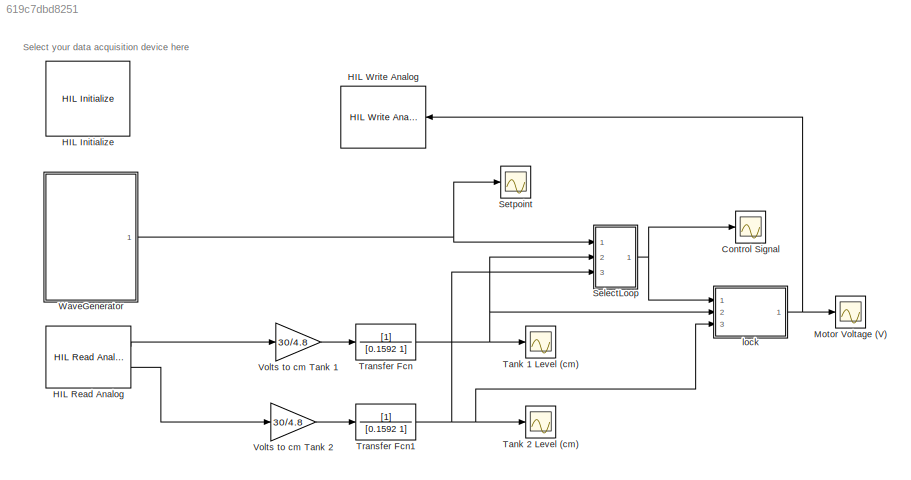
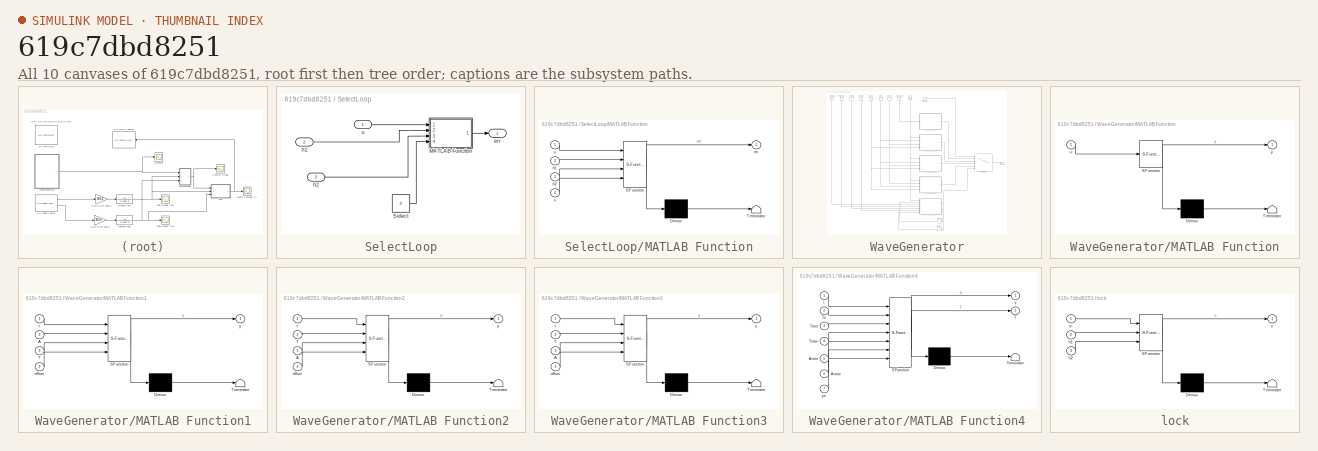
[diagram: thumbnail index - all 10 canvases of the model, root first then tree order]
MODEL slx_619c7dbd8251
KIND model
CONFIG PostLoadFcn = qc_set_target_type(getConfigSet(bdroot, 'QUARC Default Target Configuration'));
BLOCK [Scope] Control Signal
  Floating = off
  LimitDataPoints = off
  NumInputPorts = 1
  Ports = [1]
  SampleTime = 0
  SaveName = control_signal
  SaveToWorkspace = on
  ShowLegends = off
  TimeRange = 30
  YMax = 30
  YMin = -30
BLOCK [Reference] HIL Initialize  REF=quarc_library/Data Acquisition/Generic/Configuration/HIL Initialize
  AttributesFormatString = %<object_name> (%<board_type>-%<board_number>)
  Ports = []
  SourceBlock = quarc_library/Data Acquisition/Generic/Configuration/HIL Initialize
  SourceType = HIL Initialize
  UserDataPersistent = on
  active = off
  analog_input_channels = [0:1]
  analog_input_maximums = 10
  analog_input_minimums = -10
  analog_output_channels = [0:1]
  analog_output_maximums = 10
  analog_output_minimums = -10
  board_number = 0
  board_options = d0=digital;d1=digital;led=auto;update_rate=normal;decimation=1
  board_type = q2_usb
  clock_modes = []
  digital_input_channels = []
  digital_output_channels = []
  digital_output_configuration = []
  encoder_channels = [0:1]
  encoder_filter_frequency = []
  exclusive = off
  final_analog_outputs = [0]
  final_digital_outputs = [1]
  final_other_outputs = []
  final_pwm_outputs = [0]
  hardware_clocks = [0]
  initial_analog_outputs = [0]
  initial_clock_frequencies = []
  initial_digital_outputs = [1]
  initial_encoder_counts = [0]
  initial_other_outputs = []
  initial_pwm_outputs = [0]
  object_name = HIL-1
  other_output_channels = []
  pwm_alignment = []
  pwm_channels = []
  pwm_configuration = []
  pwm_frequency = 1/0.020
  pwm_leading_deadband = []
  pwm_modes = [0]
  pwm_polarity = []
  pwm_trailing_deadband = []
  quadrature = [4]
  set_analog_input_params_at_start = on
  set_analog_input_params_at_switch_in = off
  set_analog_output_params_at_start = on
  set_analog_output_params_at_switch_in = off
  set_analog_outputs_at_start = on
  set_analog_outputs_at_switch_in = off
  set_analog_outputs_at_switch_out = off
  set_analog_outputs_at_terminate = on
  set_analog_outputs_on_watchdog = off
  set_clock_frequencies_at_start = off
  set_clock_frequencies_at_switch_in = off
  set_clock_params_at_start = off
  set_clock_params_at_switch_in = off
  set_digital_output_params_at_start = off
  set_digital_output_params_at_switch_in = off
  set_digital_outputs_at_start = on
  set_digital_outputs_at_switch_in = off
  set_digital_outputs_at_switch_out = off
  set_digital_outputs_at_terminate = on
  set_digital_outputs_on_watchdog = off
  set_encoder_counts_at_start = on
  set_encoder_counts_at_switch_in = off
  set_encoder_params_at_start = on
  set_encoder_params_at_switch_in = off
  set_other_outputs_at_start = off
  set_other_outputs_at_switch_in = off
  set_other_outputs_at_switch_out = off
  set_other_outputs_at_terminate = off
  set_other_outputs_on_watchdog = off
  set_pwm_outputs_at_start = on
  set_pwm_outputs_at_switch_in = off
  set_pwm_outputs_at_switch_out = off
  set_pwm_outputs_at_terminate = on
  set_pwm_outputs_on_watchdog = off
  set_pwm_params_at_start = on
  set_pwm_params_at_switch_in = off
  watchdog_analog_outputs = 0
  watchdog_digital_outputs = [1]
  watchdog_other_outputs = []
  watchdog_pwm_outputs = [0]
BLOCK [Reference] HIL Read Analog  REF=quarc_library/Data Acquisition/Generic/Immediate I//O/HIL Read Analog
  AttributesFormatString = (%<object_name>)
  Ports = [0, 2]
  SourceBlock = quarc_library/Data Acquisition/Generic/Immediate I//O/HIL Read Analog
  SourceType = HIL Read Analog
  UserDataPersistent = on
  active = on
  channels = [0:1]
  object_name = HIL-1
  sample_time = qc_get_step_size
  vector_output = off
BLOCK [Reference] HIL Write Analog  REF=quarc_library/Data Acquisition/Generic/Immediate I//O/HIL Write Analog
  AttributesFormatString = (%<object_name>)
  Ports = [1]
  SourceBlock = quarc_library/Data Acquisition/Generic/Immediate I//O/HIL Write Analog
  SourceType = HIL Write Analog
  UserDataPersistent = on
  active = off
  channels = 0
  object_name = HIL-1
  sample_time = -1
  vector_input = off
BLOCK [Scope] Motor Voltage (V)
  Floating = off
  LimitDataPoints = off
  NumInputPorts = 1
  Ports = [1]
  SampleTime = 0
  SaveName = motor_voltage
  SaveToWorkspace = on
  ShowLegends = off
  TimeRange = 120
BLOCK [SubSystem] SelectLoop
  Ports = [3, 1]
  RequestExecContextInheritance = off
BLOCK [SubSystem] SelectLoop/MATLAB Function
  ErrorFcn = Stateflow.Translate.translate
  PermitHierarchicalResolution = ExplicitOnly
  Ports = [4, 1]
  RequestExecContextInheritance = off
  SFBlockType = MATLAB Function
  TreatAsAtomicUnit = on
BLOCK [Demux] SelectLoop/MATLAB Function/ Demux 
  Outputs = 1
  Ports = [1, 1]
BLOCK [S-Function] SelectLoop/MATLAB Function/ SFunction 
  EnableBusSupport = on
  FunctionName = sf_sfun
  PortCounts = [4 2]
  Ports = [4, 2]
  Tag = Stateflow S-Function PSC_tank_comunication 7
BLOCK [Terminator] SelectLoop/MATLAB Function/ Terminator 
BLOCK [Outport] SelectLoop/MATLAB Function/err
  IconDisplay = Port number
BLOCK [Inport] SelectLoop/MATLAB Function/h1
  IconDisplay = Port number
  Port = 2
BLOCK [Inport] SelectLoop/MATLAB Function/h2
  IconDisplay = Port number
  Port = 3
BLOCK [Inport] SelectLoop/MATLAB Function/s
  IconDisplay = Port number
  Port = 4
BLOCK [Inport] SelectLoop/MATLAB Function/u
  IconDisplay = Port number
BLOCK [Constant] SelectLoop/Select
  Value = 2
BLOCK [Outport] SelectLoop/err
  IconDisplay = Port number
BLOCK [Inport] SelectLoop/h1
  IconDisplay = Port number
  Port = 2
BLOCK [Inport] SelectLoop/h2
  IconDisplay = Port number
  Port = 3
BLOCK [Inport] SelectLoop/u
  IconDisplay = Port number
BLOCK [Scope] Setpoint
  Floating = off
  LimitDataPoints = off
  NumInputPorts = 1
  Ports = [1]
  SampleTime = 0
  SaveName = setpoint
  SaveToWorkspace = on
  ShowLegends = off
  TimeRange = 30
  YMax = 31
  YMin = -31
BLOCK [Scope] Tank 1 Level (cm)
  Floating = off
  LimitDataPoints = off
  NumInputPorts = 1
  Ports = [1]
  SampleTime = 0
  SaveName = htank1
  SaveToWorkspace = on
  ShowLegends = off
  TickLabels = on
  TimeRange = 120
  YMax = 30.5
  YMin = -2
  ZoomMode = yonly
BLOCK [Scope] Tank 2 Level (cm)
  Floating = off
  LimitDataPoints = off
  NumInputPorts = 1
  Ports = [1]
  SampleTime = 0
  SaveName = htank2
  SaveToWorkspace = on
  ShowLegends = off
  TimeRange = 120
  YMax = 30
  YMin = 0
BLOCK [TransferFcn] Transfer Fcn
  Denominator = [0.1592 1]
BLOCK [TransferFcn] Transfer Fcn1
  Denominator = [0.1592 1]
BLOCK [Gain] Volts to cm Tank 1 
  Gain = 30/4.8
  OutDataTypeStr = Inherit: Inherit via internal rule
  ParamDataTypeStr = Inherit: Inherit via internal rule
  SaturateOnIntegerOverflow = off
BLOCK [Gain] Volts to cm Tank 2
  Gain = 30/4.8
  OutDataTypeStr = Inherit: Inherit via internal rule
  ParamDataTypeStr = Inherit: Inherit via internal rule
  SaturateOnIntegerOverflow = off
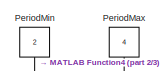
[diagram: WaveGenerator - part 1/3, top left region]
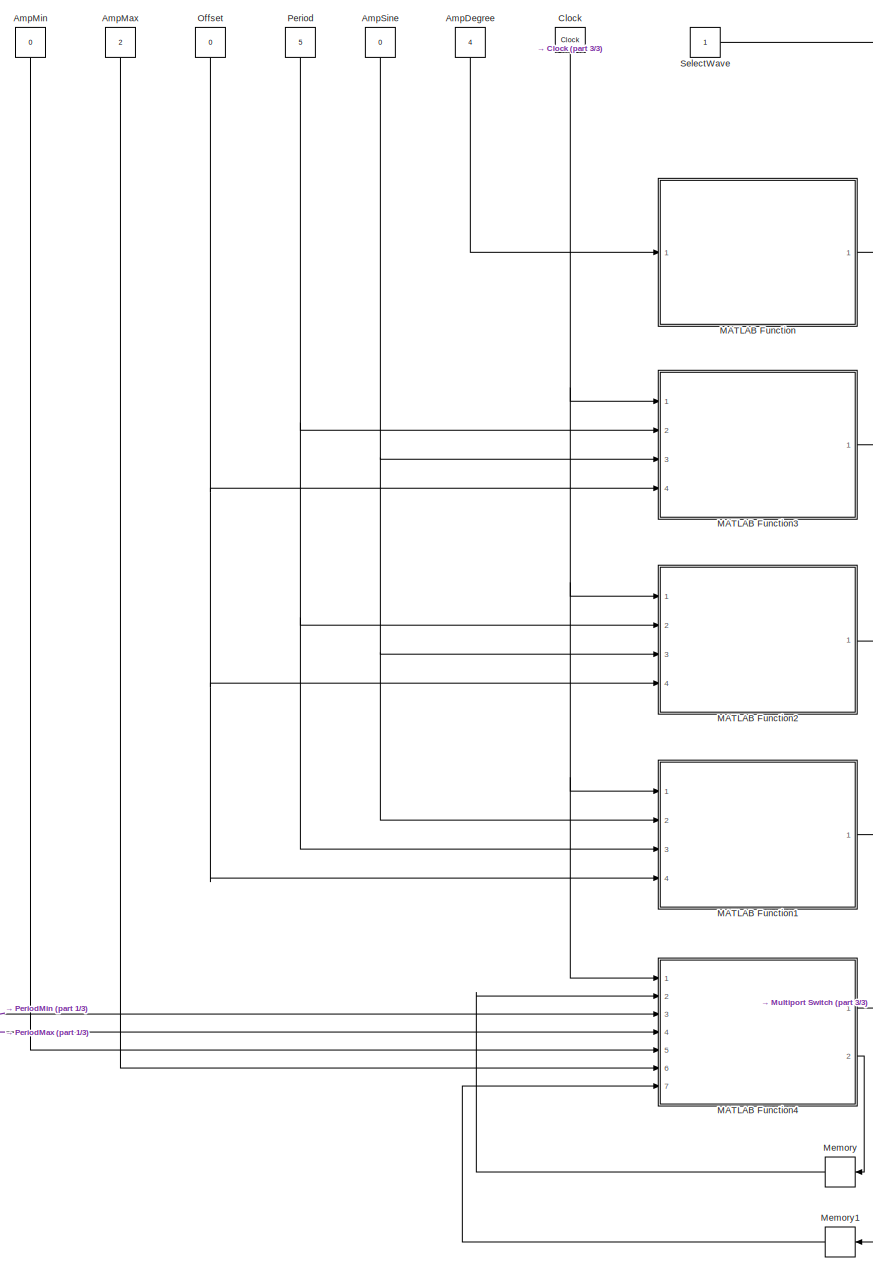
[diagram: WaveGenerator - part 2/3, center side, full height]
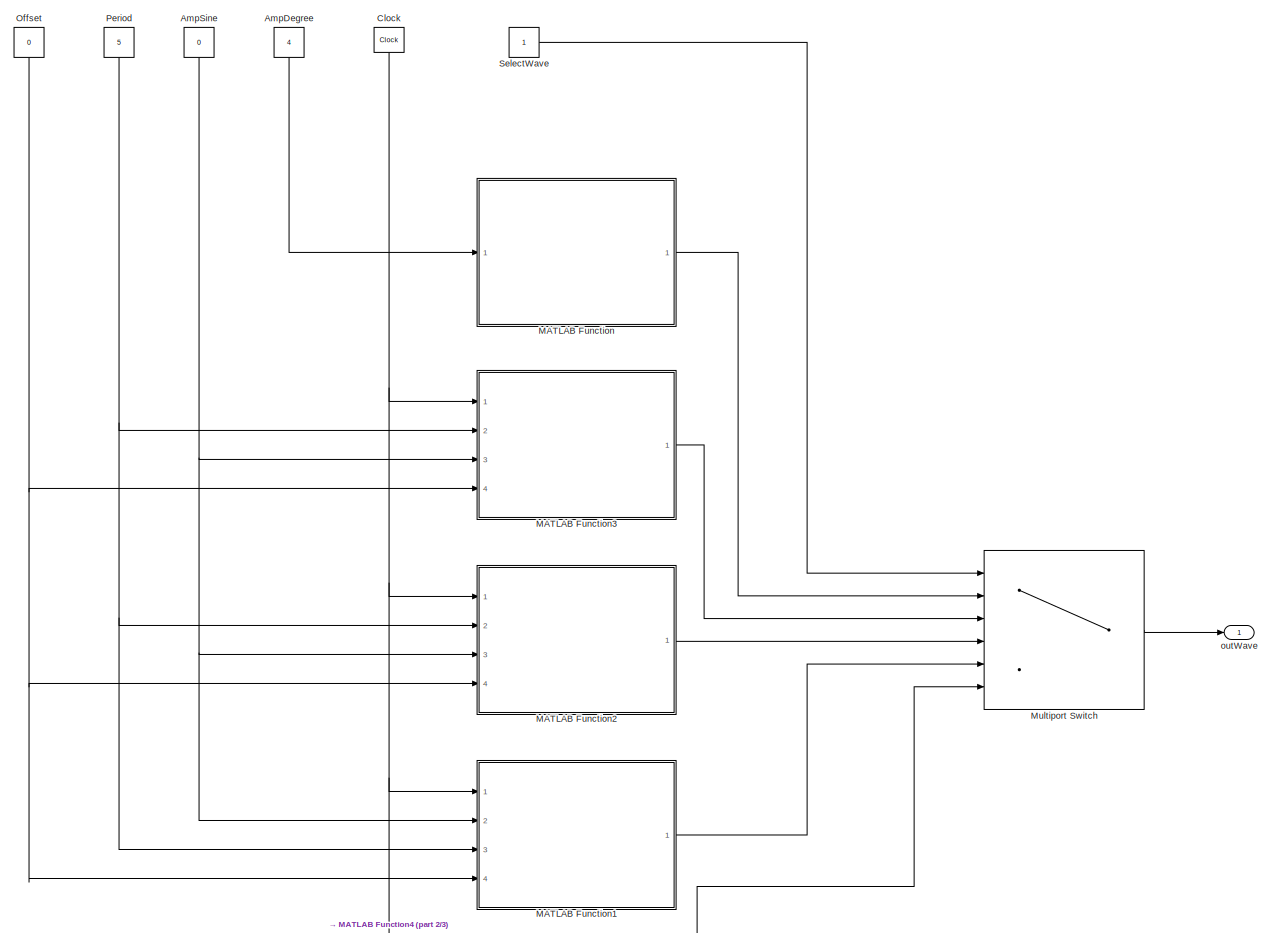
[diagram: WaveGenerator - part 3/3, full width, middle band]
BLOCK [SubSystem] WaveGenerator
  Ports = [0, 1]
  RequestExecContextInheritance = off
BLOCK [Constant] WaveGenerator/AmpDegree
  Value = 4
BLOCK [Constant] WaveGenerator/AmpMax
  Value = 2
BLOCK [Constant] WaveGenerator/AmpMin
  Value = 0
BLOCK [Constant] WaveGenerator/AmpSine
  Value = 0
BLOCK [Clock] WaveGenerator/Clock
BLOCK [SubSystem] WaveGenerator/MATLAB Function
  ErrorFcn = Stateflow.Translate.translate
  PermitHierarchicalResolution = ExplicitOnly
  Ports = [1, 1]
  RequestExecContextInheritance = off
  SFBlockType = MATLAB Function
  TreatAsAtomicUnit = on
BLOCK [Demux] WaveGenerator/MATLAB Function/ Demux 
  Outputs = 1
  Ports = [1, 1]
BLOCK [S-Function] WaveGenerator/MATLAB Function/ SFunction 
  EnableBusSupport = on
  FunctionName = sf_sfun
  PortCounts = [1 2]
  Ports = [1, 2]
  Tag = Stateflow S-Function PSC_tank_comunication 2
BLOCK [Terminator] WaveGenerator/MATLAB Function/ Terminator 
BLOCK [Inport] WaveGenerator/MATLAB Function/u
  IconDisplay = Port number
BLOCK [Outport] WaveGenerator/MATLAB Function/y
  IconDisplay = Port number
BLOCK [SubSystem] WaveGenerator/MATLAB Function1
  ErrorFcn = Stateflow.Translate.translate
  PermitHierarchicalResolution = ExplicitOnly
  Ports = [4, 1]
  RequestExecContextInheritance = off
  SFBlockType = MATLAB Function
  TreatAsAtomicUnit = on
BLOCK [Demux] WaveGenerator/MATLAB Function1/ Demux 
  Outputs = 1
  Ports = [1, 1]
BLOCK [S-Function] WaveGenerator/MATLAB Function1/ SFunction 
  EnableBusSupport = on
  FunctionName = sf_sfun
  PortCounts = [4 2]
  Ports = [4, 2]
  Tag = Stateflow S-Function PSC_tank_comunication 1
BLOCK [Terminator] WaveGenerator/MATLAB Function1/ Terminator 
BLOCK [Inport] WaveGenerator/MATLAB Function1/A
  IconDisplay = Port number
  Port = 2
BLOCK [Inport] WaveGenerator/MATLAB Function1/T
  IconDisplay = Port number
  Port = 3
BLOCK [Inport] WaveGenerator/MATLAB Function1/offset
  IconDisplay = Port number
  Port = 4
BLOCK [Inport] WaveGenerator/MATLAB Function1/t
  IconDisplay = Port number
BLOCK [Outport] WaveGenerator/MATLAB Function1/y
  IconDisplay = Port number
BLOCK [SubSystem] WaveGenerator/MATLAB Function2
  ErrorFcn = Stateflow.Translate.translate
  PermitHierarchicalResolution = ExplicitOnly
  Ports = [4, 1]
  RequestExecContextInheritance = off
  SFBlockType = MATLAB Function
  TreatAsAtomicUnit = on
BLOCK [Demux] WaveGenerator/MATLAB Function2/ Demux 
  Outputs = 1
  Ports = [1, 1]
BLOCK [S-Function] WaveGenerator/MATLAB Function2/ SFunction 
  EnableBusSupport = on
  FunctionName = sf_sfun
  PortCounts = [4 2]
  Ports = [4, 2]
  Tag = Stateflow S-Function PSC_tank_comunication 3
BLOCK [Terminator] WaveGenerator/MATLAB Function2/ Terminator 
BLOCK [Inport] WaveGenerator/MATLAB Function2/A
  IconDisplay = Port number
  Port = 3
BLOCK [Inport] WaveGenerator/MATLAB Function2/T
  IconDisplay = Port number
  Port = 2
BLOCK [Inport] WaveGenerator/MATLAB Function2/offset
  IconDisplay = Port number
  Port = 4
BLOCK [Inport] WaveGenerator/MATLAB Function2/t
  IconDisplay = Port number
BLOCK [Outport] WaveGenerator/MATLAB Function2/y
  IconDisplay = Port number
BLOCK [SubSystem] WaveGenerator/MATLAB Function3
  ErrorFcn = Stateflow.Translate.translate
  PermitHierarchicalResolution = ExplicitOnly
  Ports = [4, 1]
  RequestExecContextInheritance = off
  SFBlockType = MATLAB Function
  TreatAsAtomicUnit = on
BLOCK [Demux] WaveGenerator/MATLAB Function3/ Demux 
  Outputs = 1
  Ports = [1, 1]
BLOCK [S-Function] WaveGenerator/MATLAB Function3/ SFunction 
  EnableBusSupport = on
  FunctionName = sf_sfun
  PortCounts = [4 2]
  Ports = [4, 2]
  Tag = Stateflow S-Function PSC_tank_comunication 4
BLOCK [Terminator] WaveGenerator/MATLAB Function3/ Terminator 
BLOCK [Inport] WaveGenerator/MATLAB Function3/A
  IconDisplay = Port number
  Port = 3
BLOCK [Inport] WaveGenerator/MATLAB Function3/T
  IconDisplay = Port number
  Port = 2
BLOCK [Inport] WaveGenerator/MATLAB Function3/offset
  IconDisplay = Port number
  Port = 4
BLOCK [Inport] WaveGenerator/MATLAB Function3/t
  IconDisplay = Port number
BLOCK [Outport] WaveGenerator/MATLAB Function3/y
  IconDisplay = Port number
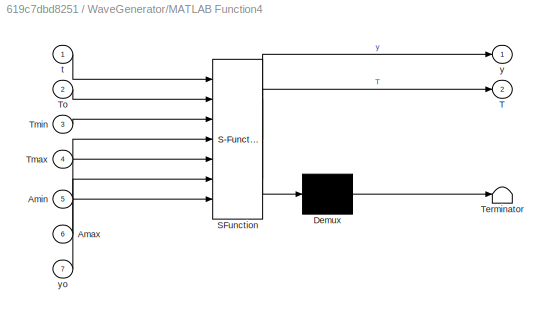
BLOCK [SubSystem] WaveGenerator/MATLAB Function4
  ErrorFcn = Stateflow.Translate.translate
  PermitHierarchicalResolution = ExplicitOnly
  Ports = [7, 2]
  RequestExecContextInheritance = off
  SFBlockType = MATLAB Function
  TreatAsAtomicUnit = on
BLOCK [Demux] WaveGenerator/MATLAB Function4/ Demux 
  Outputs = 1
  Ports = [1, 1]
BLOCK [S-Function] WaveGenerator/MATLAB Function4/ SFunction 
  EnableBusSupport = on
  FunctionName = sf_sfun
  PortCounts = [7 3]
  Ports = [7, 3]
  Tag = Stateflow S-Function PSC_tank_comunication 5
BLOCK [Terminator] WaveGenerator/MATLAB Function4/ Terminator 
BLOCK [Inport] WaveGenerator/MATLAB Function4/Amax
  IconDisplay = Port number
  Port = 6
BLOCK [Inport] WaveGenerator/MATLAB Function4/Amin
  IconDisplay = Port number
  Port = 5
BLOCK [Outport] WaveGenerator/MATLAB Function4/T
  IconDisplay = Port number
  Port = 2
BLOCK [Inport] WaveGenerator/MATLAB Function4/Tmax
  IconDisplay = Port number
  Port = 4
BLOCK [Inport] WaveGenerator/MATLAB Function4/Tmin
  IconDisplay = Port number
  Port = 3
BLOCK [Inport] WaveGenerator/MATLAB Function4/To
  IconDisplay = Port number
  Port = 2
BLOCK [Inport] WaveGenerator/MATLAB Function4/t
  IconDisplay = Port number
BLOCK [Outport] WaveGenerator/MATLAB Function4/y
  IconDisplay = Port number
BLOCK [Inport] WaveGenerator/MATLAB Function4/yo
  IconDisplay = Port number
  Port = 7
BLOCK [Memory] WaveGenerator/Memory
BLOCK [Memory] WaveGenerator/Memory1
BLOCK [MultiPortSwitch] WaveGenerator/Multiport Switch
  InputSameDT = off
  Inputs = 5
  Ports = [6, 1]
  SaturateOnIntegerOverflow = off
BLOCK [Constant] WaveGenerator/Offset
  Value = 0
BLOCK [Constant] WaveGenerator/Period
  Value = 5
BLOCK [Constant] WaveGenerator/PeriodMax
  Value = 4
BLOCK [Constant] WaveGenerator/PeriodMin
  Value = 2
BLOCK [Constant] WaveGenerator/SelectWave
BLOCK [Outport] WaveGenerator/outWave
  IconDisplay = Port number
BLOCK [SubSystem] lock
  ErrorFcn = Stateflow.Translate.translate
  PermitHierarchicalResolution = ExplicitOnly
  Ports = [3, 1]
  RequestExecContextInheritance = off
  SFBlockType = MATLAB Function
  TreatAsAtomicUnit = on
BLOCK [Demux] lock/ Demux 
  Outputs = 1
  Ports = [1, 1]
BLOCK [S-Function] lock/ SFunction 
  EnableBusSupport = on
  FunctionName = sf_sfun
  PortCounts = [3 2]
  Ports = [3, 2]
  Tag = Stateflow S-Function PSC_tank_comunication 6
BLOCK [Terminator] lock/ Terminator 
BLOCK [Inport] lock/h1
  IconDisplay = Port number
  Port = 2
BLOCK [Inport] lock/h2
  IconDisplay = Port number
  Port = 3
BLOCK [Inport] lock/in
  IconDisplay = Port number
BLOCK [Outport] lock/u
  IconDisplay = Port number
ANNOTATION (root): Select your data acquisition device here
LINE HIL Read Analog:1 -> Volts to cm Tank 1 :1
LINE HIL Read Analog:2 -> Volts to cm Tank 2:1
LINE SelectLoop/MATLAB Function:1 -> SelectLoop/err:1
LINE SelectLoop/Select:1 -> SelectLoop/MATLAB Function:4
LINE SelectLoop/h1:1 -> SelectLoop/MATLAB Function:2
LINE SelectLoop/h2:1 -> SelectLoop/MATLAB Function:3
LINE SelectLoop/u:1 -> SelectLoop/MATLAB Function:1
NET SelectLoop:1 -> Control Signal:1, lock:1
NET Transfer Fcn1:1 -> SelectLoop:3, Tank 2 Level (cm):1, lock:3
NET Transfer Fcn:1 -> SelectLoop:2, Tank 1 Level (cm):1, lock:2
LINE Volts to cm Tank 1 :1 -> Transfer Fcn:1
LINE Volts to cm Tank 2:1 -> Transfer Fcn1:1
LINE WaveGenerator/AmpDegree:1 -> WaveGenerator/MATLAB Function:1
LINE WaveGenerator/AmpMax:1 -> WaveGenerator/MATLAB Function4:6
LINE WaveGenerator/AmpMin:1 -> WaveGenerator/MATLAB Function4:5
NET WaveGenerator/AmpSine:1 -> WaveGenerator/MATLAB Function1:2, WaveGenerator/MATLAB Function2:3, WaveGenerator/MATLAB Function3:3
NET WaveGenerator/Clock:1 -> WaveGenerator/MATLAB Function1:1, WaveGenerator/MATLAB Function2:1, WaveGenerator/MATLAB Function3:1, WaveGenerator/MATLAB Function4:1
LINE WaveGenerator/MATLAB Function1:1 -> WaveGenerator/Multiport Switch:5
LINE WaveGenerator/MATLAB Function2:1 -> WaveGenerator/Multiport Switch:4
LINE WaveGenerator/MATLAB Function3:1 -> WaveGenerator/Multiport Switch:3
NET WaveGenerator/MATLAB Function4:1 -> WaveGenerator/Memory1:1, WaveGenerator/Multiport Switch:6
LINE WaveGenerator/MATLAB Function4:2 -> WaveGenerator/Memory:1
LINE WaveGenerator/MATLAB Function:1 -> WaveGenerator/Multiport Switch:2
LINE WaveGenerator/Memory1:1 -> WaveGenerator/MATLAB Function4:7
LINE WaveGenerator/Memory:1 -> WaveGenerator/MATLAB Function4:2
LINE WaveGenerator/Multiport Switch:1 -> WaveGenerator/outWave:1
NET WaveGenerator/Offset:1 -> WaveGenerator/MATLAB Function1:4, WaveGenerator/MATLAB Function2:4, WaveGenerator/MATLAB Function3:4
NET WaveGenerator/Period:1 -> WaveGenerator/MATLAB Function1:3, WaveGenerator/MATLAB Function2:2, WaveGenerator/MATLAB Function3:2
LINE WaveGenerator/PeriodMax:1 -> WaveGenerator/MATLAB Function4:4
LINE WaveGenerator/PeriodMin:1 -> WaveGenerator/MATLAB Function4:3
LINE WaveGenerator/SelectWave:1 -> WaveGenerator/Multiport Switch:1
NET WaveGenerator:1 -> SelectLoop:1, Setpoint:1
NET lock:1 -> HIL Write Analog:1, Motor Voltage (V):1
note: NET lines group one-source signal fan-out (src -> all destinations, sorted); 1:1 wires keep LINE
